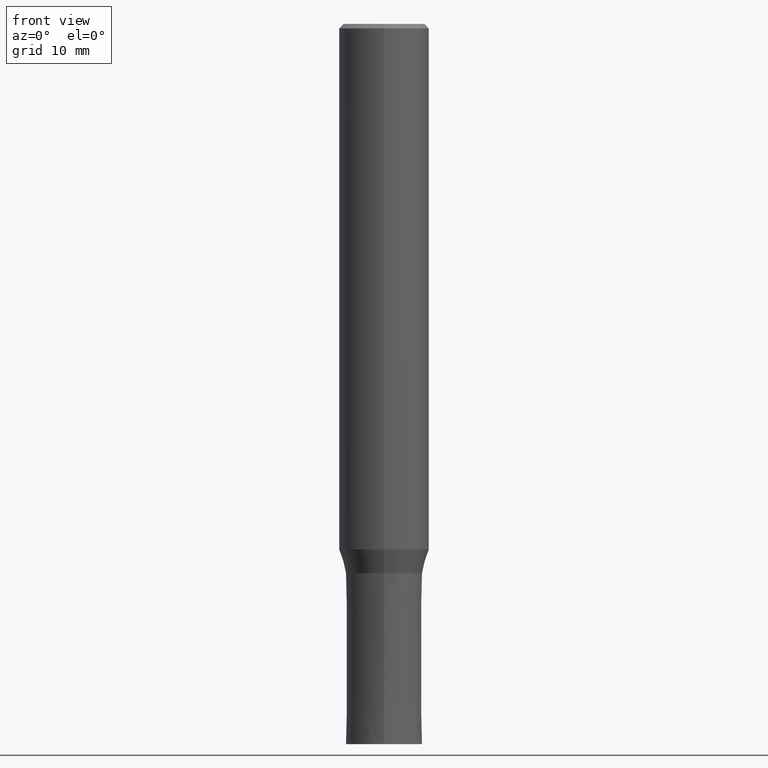
[diagram: clean part render]
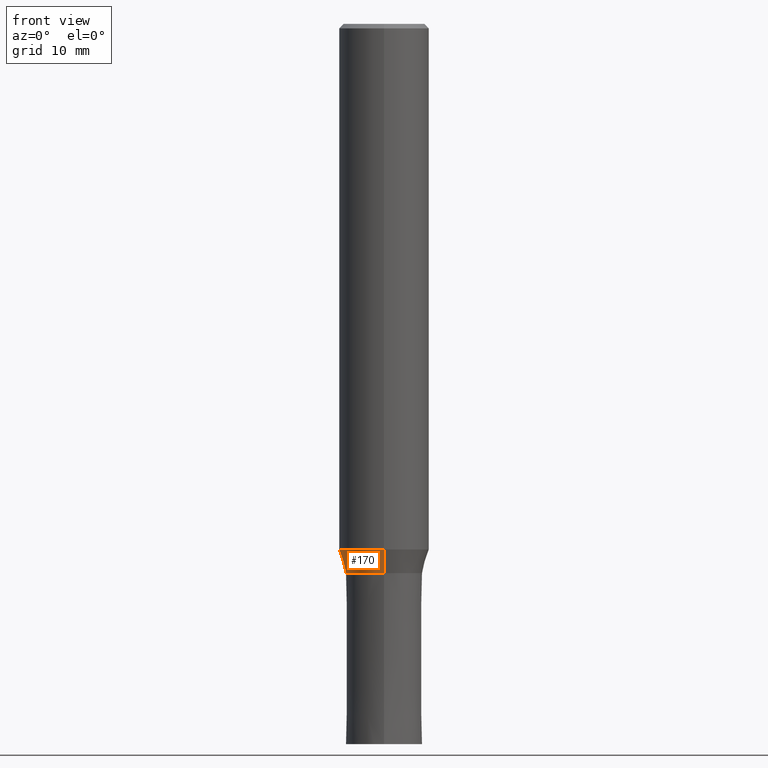
[diagram: same view with one face highlighted and labeled with its STEP entity id]
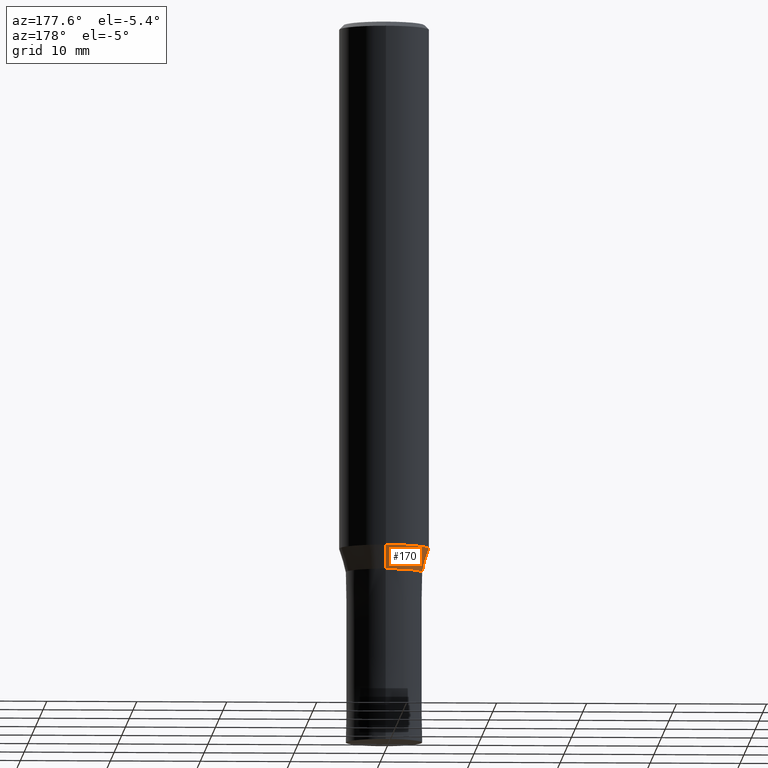
[diagram: same view with one face highlighted and labeled with its STEP entity id]
A machine part, front view. The second image highlights one B-rep face of the part: STEP entity #170.
A second angle (auxiliary view) of the same face is appended — the face is thin or edge-on in the first view.
In plain terms, the highlighted conical surface has half-angle 15.997 deg.
Its self-contained STEP definition (entity closure, byte-faithful):
#86=VERTEX_POINT('',#208);
#108=VERTEX_POINT('',#232);
#112=EDGE_CURVE('',#108,#174,#236,.T.);
#120=EDGE_CURVE('',#86,#144,#244,.T.);
#142=EDGE_CURVE('',#174,#144,#269,.T.);
#144=VERTEX_POINT('',#271);
#170=ADVANCED_FACE('',(#303),#304,.T.);
#174=VERTEX_POINT('',#308);
#184=EDGE_CURVE('',#86,#108,#319,.T.);
#208=CARTESIAN_POINT('',(5.20451577342741E-016,-4.24995,-61.0));
#232=CARTESIAN_POINT('',(6.12297053879419E-016,-4.99995,-58.384));
#236=CIRCLE('',#373,4.99995);
#244=CIRCLE('',#383,4.24995);
#269=LINE('',#414,#415);
#271=CARTESIAN_POINT('',(0.0,4.24995,-61.0));
#303=FACE_OUTER_BOUND('',#456,.T.);
#304=CONICAL_SURFACE('',#457,4.62495,0.279208199033747);
#308=CARTESIAN_POINT('',(0.0,4.99995,-58.384));
#319=LINE('',#473,#474);
#373=AXIS2_PLACEMENT_3D('',#515,#516,#517);
#383=AXIS2_PLACEMENT_3D('',#525,#526,#527);
#414=CARTESIAN_POINT('',(-5.6637431561108E-016,4.62495,-59.692));
#415=VECTOR('',#560,1.0);
#456=EDGE_LOOP('',(#604,#605,#606,#607));
#457=AXIS2_PLACEMENT_3D('',#608,#609,#610);
#473=CARTESIAN_POINT('',(5.6637431561108E-016,-4.62495,-59.692));
#474=VECTOR('',#623,1.0);
#515=CARTESIAN_POINT('',(0.0,0.0,-58.384));
#516=DIRECTION('',(0.0,0.0,-1.0));
#517=DIRECTION('',(0.0,1.0,0.0));
#525=CARTESIAN_POINT('',(0.0,0.0,-61.0));
#526=DIRECTION('',(0.0,0.0,-1.0));
#527=DIRECTION('',(0.0,1.0,0.0));
#560=DIRECTION('',(3.37494895041124E-017,-0.275594597388538,-0.961273955691222));
#604=ORIENTED_EDGE('',*,*,#142,.T.);
#605=ORIENTED_EDGE('',*,*,#120,.F.);
#606=ORIENTED_EDGE('',*,*,#184,.T.);
#607=ORIENTED_EDGE('',*,*,#112,.T.);
#608=CARTESIAN_POINT('',(0.0,0.0,-59.692));
#609=DIRECTION('',(-0.0,-0.0,1.0));
#610=DIRECTION('',(0.0,1.0,0.0));
#623=DIRECTION('',(3.37494895041124E-017,-0.275594597388538,0.961273955691222));